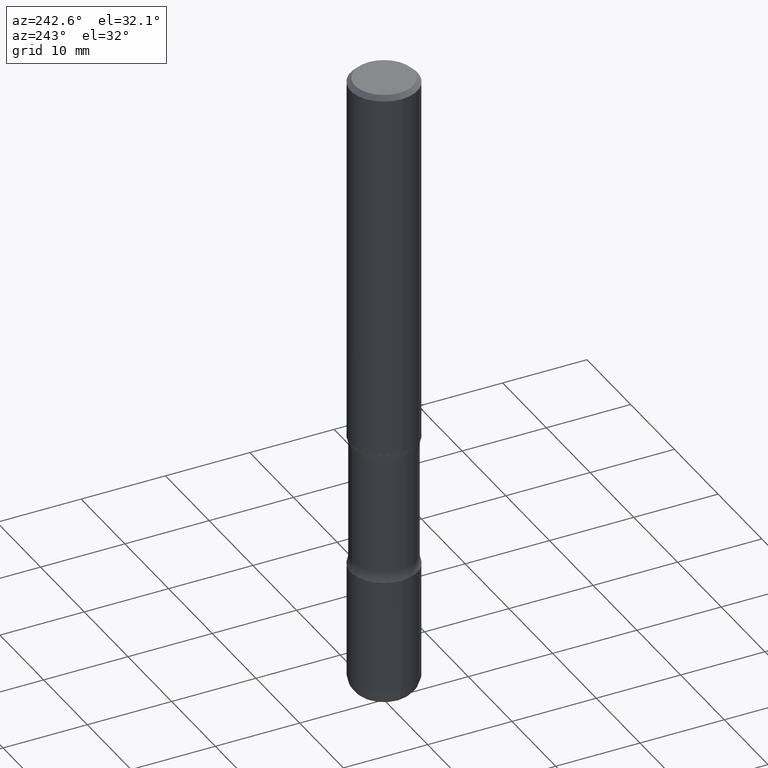
[diagram: clean part render]
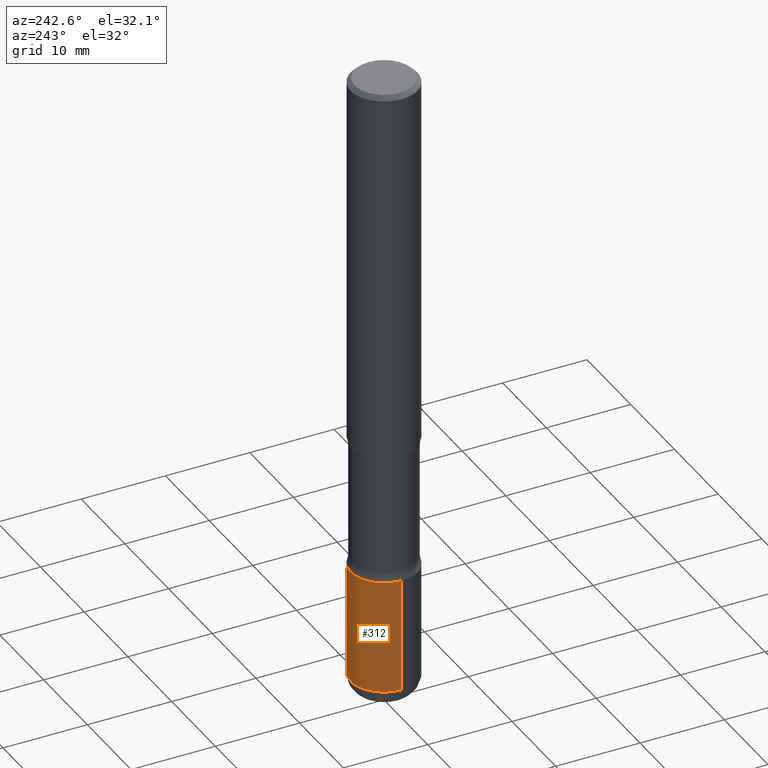
[diagram: same view with one face highlighted and labeled with its STEP entity id]
A machine part, auxiliary view. The second image highlights one B-rep face of the part: STEP entity #312.
In plain terms, the highlighted cylindrical surface (partial cylindrical patch) has radius 3.9688 mm, axis along (-0, 0, 1).
Its self-contained STEP definition (entity closure, byte-faithful):
#30 = EDGE_CURVE ( 'NONE', #484, #266, #393, .T. ) ;
#44 = CARTESIAN_POINT ( 'NONE',  ( -0.1562500000000001110, -8.116016413267856641E-15, -2.375000000000000444 ) ) ;
#53 = CARTESIAN_POINT ( 'NONE',  ( 5.807988414689700538E-29, -8.292268179752471696E-15, -2.375000000000000444 ) ) ;
#57 = VECTOR ( 'NONE', #164, 39.37007874015748143 ) ;
#61 = VERTEX_POINT ( 'NONE', #180 ) ;
#63 = EDGE_CURVE ( 'NONE', #61, #88, #170, .T. ) ;
#88 = VERTEX_POINT ( 'NONE', #136 ) ;
#91 = EDGE_LOOP ( 'NONE', ( #140, #348, #425, #474 ) ) ;
#136 = CARTESIAN_POINT ( 'NONE',  ( -0.1562500000000002776, -9.049987671408398127E-15, -2.910000000000001030 ) ) ;
#138 = DIRECTION ( 'NONE',  ( 1.000000000000000000, -6.982962677686266711E-15, 4.876176775795936353E-29 ) ) ;
#140 = ORIENTED_EDGE ( 'NONE', *, *, #63, .T. ) ;
#147 = CARTESIAN_POINT ( 'NONE',  ( 7.116314225998750366E-29, -1.016021069603355624E-14, -2.910000000000001030 ) ) ;
#164 = DIRECTION ( 'NONE',  ( -2.445468806185136877E-29, 3.491481338843145188E-15, 1.000000000000000000 ) ) ;
#170 = CIRCLE ( 'NONE', #557, 0.1562500000000001665 ) ;
#180 = CARTESIAN_POINT ( 'NONE',  ( 0.1562500000000002776, -1.125129861442203936E-14, -2.910000000000001030 ) ) ;
#182 = CYLINDRICAL_SURFACE ( 'NONE', #329, 0.1562500000000001388 ) ;
#193 = DIRECTION ( 'NONE',  ( 1.000000000000000000, -6.982962677686270655E-15, 0.000000000000000000 ) ) ;
#247 = VECTOR ( 'NONE', #317, 39.37007874015748143 ) ;
#266 = VERTEX_POINT ( 'NONE', #44 ) ;
#274 = DIRECTION ( 'NONE',  ( -2.445468806185136597E-29, 3.491481338843145583E-15, 1.000000000000000000 ) ) ;
#312 = ADVANCED_FACE ( 'NONE', ( #388 ), #182, .T. ) ;
#317 = DIRECTION ( 'NONE',  ( -2.445468806185136877E-29, 3.491481338843145188E-15, 1.000000000000000000 ) ) ;
#329 = AXIS2_PLACEMENT_3D ( 'NONE', #347, #522, #138 ) ;
#347 = CARTESIAN_POINT ( 'NONE',  ( 0.000000000000000000, 0.000000000000000000, 0.000000000000000000 ) ) ;
#348 = ORIENTED_EDGE ( 'NONE', *, *, #362, .T. ) ;
#362 = EDGE_CURVE ( 'NONE', #88, #266, #410, .T. ) ;
#386 = LINE ( 'NONE', #485, #247 ) ;
#387 = EDGE_CURVE ( 'NONE', #61, #484, #386, .T. ) ;
#388 = FACE_OUTER_BOUND ( 'NONE', #91, .T. ) ;
#393 = CIRCLE ( 'NONE', #405, 0.1562500000000001110 ) ;
#405 = AXIS2_PLACEMENT_3D ( 'NONE', #53, #439, #193 ) ;
#410 = LINE ( 'NONE', #541, #57 ) ;
#425 = ORIENTED_EDGE ( 'NONE', *, *, #30, .F. ) ;
#439 = DIRECTION ( 'NONE',  ( -2.445468806185136597E-29, 3.491481338843145583E-15, 1.000000000000000000 ) ) ;
#443 = DIRECTION ( 'NONE',  ( 1.000000000000000000, -6.982962677686268288E-15, 0.000000000000000000 ) ) ;
#474 = ORIENTED_EDGE ( 'NONE', *, *, #387, .F. ) ;
#484 = VERTEX_POINT ( 'NONE', #545 ) ;
#485 = CARTESIAN_POINT ( 'NONE',  ( 0.1562500000000001388, -1.091087918388480160E-15, 7.619026212181157383E-30 ) ) ;
#522 = DIRECTION ( 'NONE',  ( -2.445468806185136597E-29, 3.491481338843145583E-15, 1.000000000000000000 ) ) ;
#541 = CARTESIAN_POINT ( 'NONE',  ( -0.1562500000000001388, 1.110223024625157526E-15, -7.685836078523296765E-30 ) ) ;
#545 = CARTESIAN_POINT ( 'NONE',  ( 0.1562500000000001110, -9.383356098140953236E-15, -2.375000000000000444 ) ) ;
#557 = AXIS2_PLACEMENT_3D ( 'NONE', #147, #274, #443 ) ;